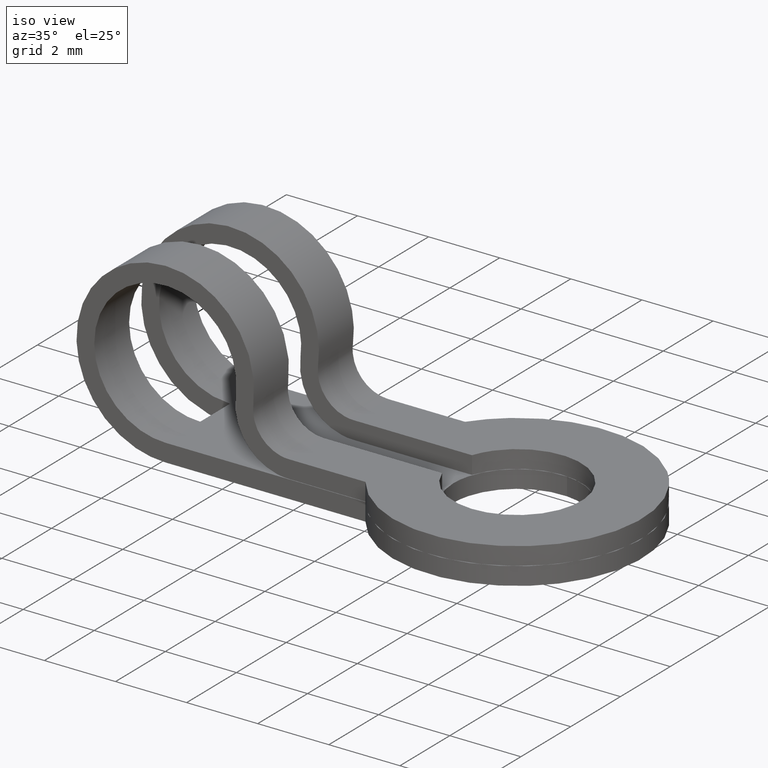
[diagram: clean part render]
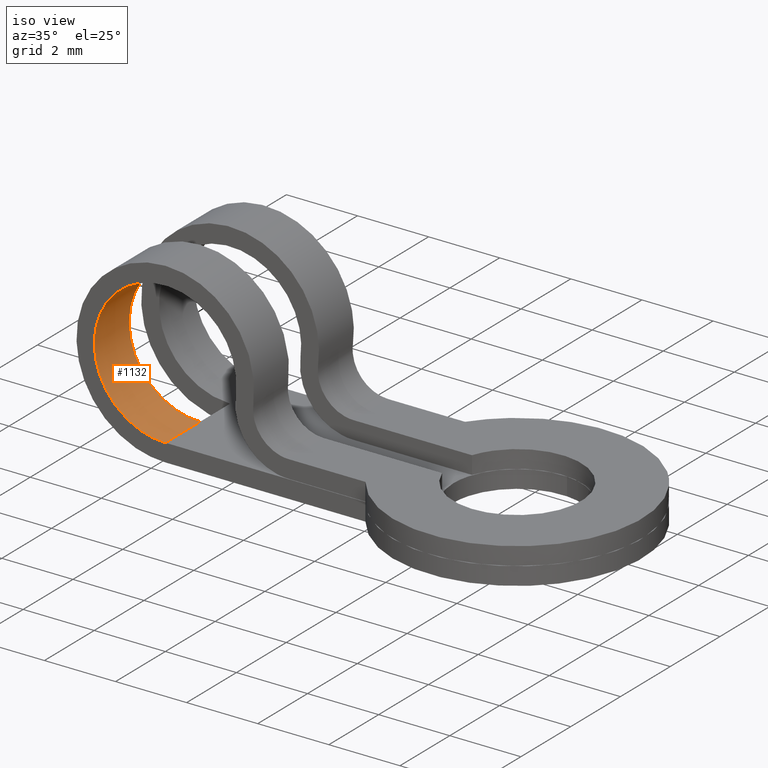
[diagram: same view with one face highlighted and labeled with its STEP entity id]
A machine part, iso view. The second image highlights one B-rep face of the part: STEP entity #1132.
In plain terms, the highlighted face is a freeform B-spline surface patch.
Its self-contained STEP definition (entity closure, byte-faithful):
#343=CARTESIAN_POINT('',(0.400000000000006,-0.600000000000000,-2.0));
#344=VERTEX_POINT('',#343);
#431=CARTESIAN_POINT('',(2.380303007117855,-0.600000000000045,-0.280000000000000));
#432=VERTEX_POINT('',#431);
#448=CARTESIAN_POINT('',(2.380303007117856,-0.600000000000045,-0.280000000000001));
#449=CARTESIAN_POINT('',(2.574589215357118,-0.600000000000045,1.094091294349061));
#450=CARTESIAN_POINT('',(1.355418149985138,-0.600000000000045,1.757036185933286));
#451=CARTESIAN_POINT('',(0.136247084613157,-0.600000000000045,2.419981077517511));
#452=CARTESIAN_POINT('',(-0.911487704860394,-0.600000000000045,1.509966887054151));
#453=CARTESIAN_POINT('',(-1.959222494333944,-0.600000000000045,0.599952696590792));
#454=CARTESIAN_POINT('',(-1.473490562307196,-0.600000000000045,-0.700023651704603));
#455=CARTESIAN_POINT('',(-0.987758630280446,-0.600000000000045,-2.000000000000000));
#456=CARTESIAN_POINT('',(0.400000000000006,-0.600000000000000,-2.0));
#464=(BOUNDED_CURVE()B_SPLINE_CURVE(2,(#448,#449,#450,#451,#452,#453,#454,#455,#456),.UNSPECIFIED.,.F.,.U.)B_SPLINE_CURVE_WITH_KNOTS((3,2,2,2,3),(0.0,0.250000000000000,0.500000000000000,0.750000000000000,1.0),.UNSPECIFIED.)CURVE()GEOMETRIC_REPRESENTATION_ITEM()RATIONAL_B_SPLINE_CURVE((1.0,0.821587434742129,1.0,0.821587434742129,1.0,0.821587434742129,1.0,0.821587434742129,1.0))REPRESENTATION_ITEM(''));
#465=EDGE_CURVE('',#432,#344,#464,.T.);
#780=CARTESIAN_POINT('',(0.400000000000006,-2.0,-2.0));
#781=VERTEX_POINT('',#780);
#787=CARTESIAN_POINT('',(2.380303007117855,-2.0,-0.280000000000000));
#788=VERTEX_POINT('',#787);
#789=CARTESIAN_POINT('',(2.380303007117856,-2.0,-0.280000000000001));
#790=CARTESIAN_POINT('',(2.574589215357118,-2.000000000000000,1.094091294349061));
#791=CARTESIAN_POINT('',(1.355418149985138,-2.0,1.757036185933286));
#792=CARTESIAN_POINT('',(0.136247084613157,-2.000000000000000,2.419981077517511));
#793=CARTESIAN_POINT('',(-0.911487704860394,-2.0,1.509966887054151));
#794=CARTESIAN_POINT('',(-1.959222494333944,-2.000000000000000,0.599952696590792));
#795=CARTESIAN_POINT('',(-1.473490562307196,-2.0,-0.700023651704603));
#796=CARTESIAN_POINT('',(-0.987758630280446,-2.000000000000000,-2.000000000000000));
#797=CARTESIAN_POINT('',(0.400000000000006,-2.0,-2.0));
#805=(BOUNDED_CURVE()B_SPLINE_CURVE(2,(#789,#790,#791,#792,#793,#794,#795,#796,#797),.UNSPECIFIED.,.F.,.U.)B_SPLINE_CURVE_WITH_KNOTS((3,2,2,2,3),(0.0,0.250000000000000,0.500000000000000,0.750000000000000,1.0),.UNSPECIFIED.)CURVE()GEOMETRIC_REPRESENTATION_ITEM()RATIONAL_B_SPLINE_CURVE((1.0,0.821587434742129,1.0,0.821587434742129,1.0,0.821587434742129,1.0,0.821587434742129,1.0))REPRESENTATION_ITEM(''));
#806=EDGE_CURVE('',#788,#781,#805,.T.);
#971=CARTESIAN_POINT('',(2.380303007117855,-0.600000000000045,-0.280000000000000));
#972=CARTESIAN_POINT('',(2.380303007117855,-2.0,-0.280000000000000));
#973=QUASI_UNIFORM_CURVE('',1,(#971,#972),.UNSPECIFIED.,.F.,.U.);
#974=EDGE_CURVE('',#432,#788,#973,.T.);
#1058=CARTESIAN_POINT('',(0.400000000000006,-0.600000000000000,-2.0));
#1059=CARTESIAN_POINT('',(0.400000000000006,-2.0,-2.0));
#1060=QUASI_UNIFORM_CURVE('',1,(#1058,#1059),.UNSPECIFIED.,.F.,.U.);
#1061=EDGE_CURVE('',#344,#781,#1060,.T.);
#1104=CARTESIAN_POINT('',(0.485570185017899,-0.565000000000000,-1.998168597350084));
#1105=CARTESIAN_POINT('',(0.485570185017899,-2.035875000000000,-1.998168597350084));
#1106=CARTESIAN_POINT('',(-1.695048191839909,-0.565000000000000,-2.091552067698181));
#1107=CARTESIAN_POINT('',(-1.695048191839909,-2.035874999999999,-2.091552067698181));
#1108=CARTESIAN_POINT('',(-1.598022895605858,-0.565000000000000,0.088907303607538));
#1109=CARTESIAN_POINT('',(-1.598022895605858,-2.035875000000000,0.088907303607538));
#1110=CARTESIAN_POINT('',(-1.500997599371804,-0.565000000000000,2.269366674913257));
#1111=CARTESIAN_POINT('',(-1.500997599371804,-2.035874999999999,2.269366674913257));
#1112=CARTESIAN_POINT('',(0.662708153968823,-0.565000000000000,1.982671033186872));
#1113=CARTESIAN_POINT('',(0.662708153968823,-2.035875000000000,1.982671033186872));
#1114=CARTESIAN_POINT('',(2.826413907309451,-0.565000000000000,1.695975391460485));
#1115=CARTESIAN_POINT('',(2.826413907309451,-2.035874999999999,1.695975391460485));
#1116=CARTESIAN_POINT('',(2.352229847035832,-0.565000000000000,-0.434509636650875));
#1117=CARTESIAN_POINT('',(2.352229847035832,-2.035875000000000,-0.434509636650875));
#1125=(BOUNDED_SURFACE()B_SPLINE_SURFACE(1,2,((#1104,#1106,#1108,#1110,#1112,#1114,#1116),(#1105,#1107,#1109,#1111,#1113,#1115,#1117)),.UNSPECIFIED.,.F.,.F.,.U.)B_SPLINE_SURFACE_WITH_KNOTS((2,2),(3,2,2,3),(0.0,1.0),(0.0,3.520084247134668,7.040168494269336,10.560252741404000),.UNSPECIFIED.)GEOMETRIC_REPRESENTATION_ITEM()RATIONAL_B_SPLINE_SURFACE(((1.0,0.675590207615660,1.0,0.675590207615660,1.0,0.675590207615660,1.0),(1.0,0.675590207615660,1.0,0.675590207615660,1.0,0.675590207615660,1.0)))REPRESENTATION_ITEM('')SURFACE());
#1126=ORIENTED_EDGE('',*,*,#465,.F.);
#1127=ORIENTED_EDGE('',*,*,#974,.T.);
#1128=ORIENTED_EDGE('',*,*,#806,.T.);
#1129=ORIENTED_EDGE('',*,*,#1061,.F.);
#1130=EDGE_LOOP('',(#1126,#1127,#1128,#1129));
#1131=FACE_OUTER_BOUND('',#1130,.T.);
#1132=ADVANCED_FACE('',(#1131),#1125,.F.);